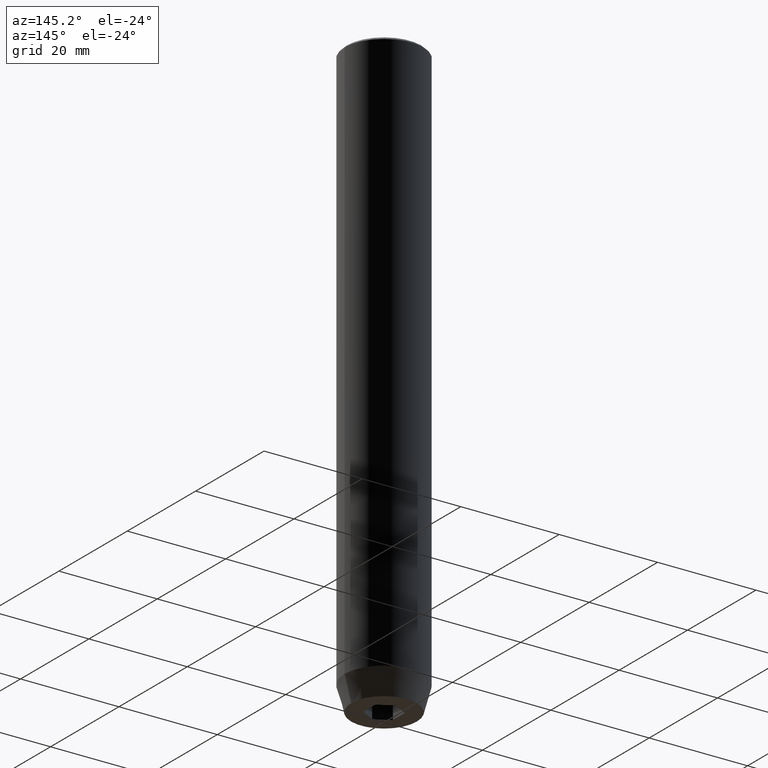
[diagram: clean part render]
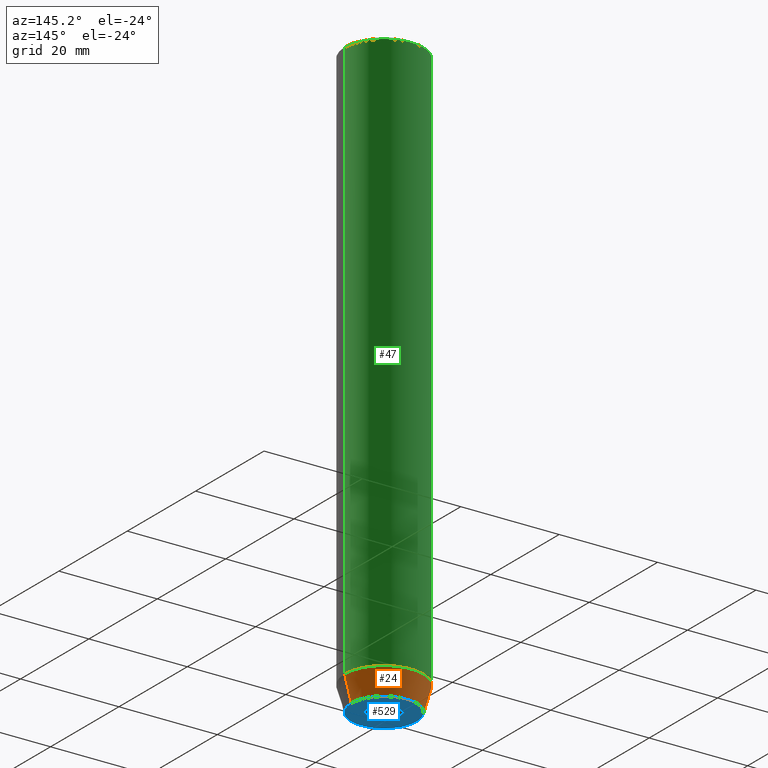
[diagram: same view with three faces highlighted in distinct colors, each labeled with its STEP entity id]
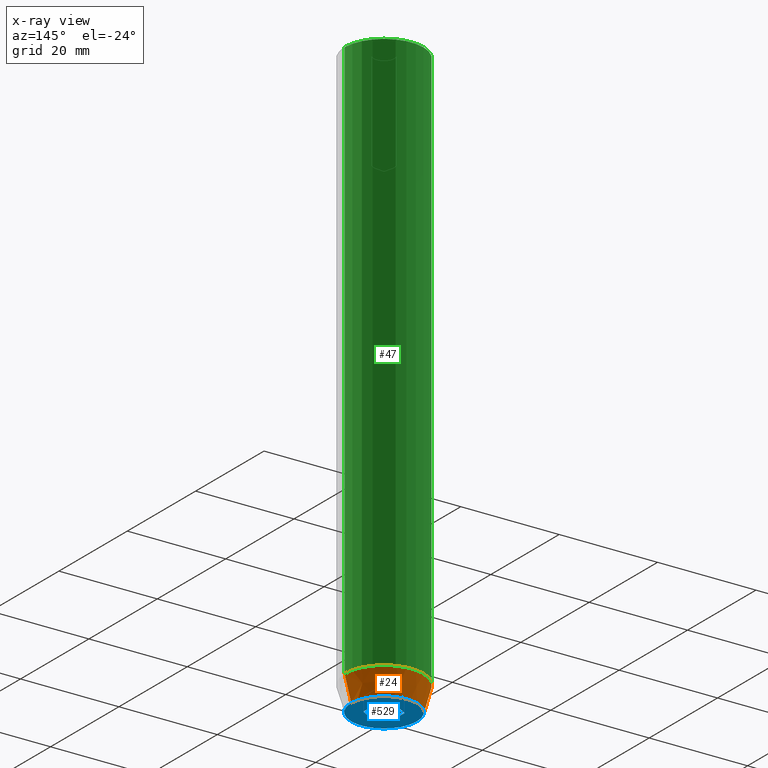
[diagram: x-ray of the same camera — body ghosted, the three highlighted faces saturated]
A machine part, auxiliary view with three faces highlighted in distinct colors.
The next image is the same camera in x-ray (body ghosted, the three faces saturated) — at least one of them is partly hidden behind the body in this view.
Their STEP definitions:

[orange] entity #24 — the highlighted conical surface has half-angle 15 deg.
#12 = ORIENTED_EDGE ( 'NONE', *, *, #315, .F. ) ;
#19 = CIRCLE ( 'NONE', #558, 6.660254037844381969 ) ;
#24 = ADVANCED_FACE ( 'NONE', ( #541 ), #515, .T. ) ;
#75 = CIRCLE ( 'NONE', #475, 8.000000000000000000 ) ;
#112 = VECTOR ( 'NONE', #451, 1000.000000000000000 ) ;
#132 = CARTESIAN_POINT ( 'NONE',  ( -8.000000000000000000, 9.797174393178825657E-16, -114.9999999999999858 ) ) ;
#133 = DIRECTION ( 'NONE',  ( -0.000000000000000000, -0.000000000000000000, 1.000000000000000000 ) ) ;
#135 = ORIENTED_EDGE ( 'NONE', *, *, #149, .F. ) ;
#140 = CARTESIAN_POINT ( 'NONE',  ( 0.000000000000000000, 0.000000000000000000, -114.9999999999999858 ) ) ;
#149 = EDGE_CURVE ( 'NONE', #501, #317, #75, .T. ) ;
#192 = DIRECTION ( 'NONE',  ( -0.000000000000000000, -0.000000000000000000, 1.000000000000000000 ) ) ;
#209 = ORIENTED_EDGE ( 'NONE', *, *, #415, .T. ) ;
#238 = CARTESIAN_POINT ( 'NONE',  ( 0.000000000000000000, 0.000000000000000000, -114.9999999999999858 ) ) ;
#251 = CARTESIAN_POINT ( 'NONE',  ( 6.660254037844381969, 0.000000000000000000, -120.0000000000000000 ) ) ;
#261 = CARTESIAN_POINT ( 'NONE',  ( 8.000000000000000000, 0.000000000000000000, -114.9999999999999858 ) ) ;
#299 = VECTOR ( 'NONE', #374, 1000.000000000000000 ) ;
#312 = DIRECTION ( 'NONE',  ( 1.000000000000000000, 0.000000000000000000, 0.000000000000000000 ) ) ;
#315 = EDGE_CURVE ( 'NONE', #531, #501, #543, .T. ) ;
#317 = VERTEX_POINT ( 'NONE', #132 ) ;
#322 = CARTESIAN_POINT ( 'NONE',  ( 0.000000000000000000, 0.000000000000000000, -120.0000000000000000 ) ) ;
#352 = ORIENTED_EDGE ( 'NONE', *, *, #437, .T. ) ;
#374 = DIRECTION ( 'NONE',  ( -0.2588190451025213501, 3.169619151431772337E-17, 0.9659258262890680902 ) ) ;
#377 = LINE ( 'NONE', #557, #299 ) ;
#382 = CARTESIAN_POINT ( 'NONE',  ( -6.660254037844381969, 8.976816591066591237E-16, -120.0000000000000000 ) ) ;
#394 = CARTESIAN_POINT ( 'NONE',  ( 8.000000000000000000, 0.000000000000000000, -114.9999999999999858 ) ) ;
#415 = EDGE_CURVE ( 'NONE', #580, #317, #377, .T. ) ;
#427 = DIRECTION ( 'NONE',  ( 1.000000000000000000, 0.000000000000000000, 0.000000000000000000 ) ) ;
#437 = EDGE_CURVE ( 'NONE', #531, #580, #19, .T. ) ;
#451 = DIRECTION ( 'NONE',  ( 0.2588190451025213501, 0.000000000000000000, 0.9659258262890680902 ) ) ;
#452 = EDGE_LOOP ( 'NONE', ( #352, #209, #135, #12 ) ) ;
#468 = DIRECTION ( 'NONE',  ( -0.000000000000000000, -0.000000000000000000, 1.000000000000000000 ) ) ;
#469 = AXIS2_PLACEMENT_3D ( 'NONE', #140, #133, #312 ) ;
#474 = DIRECTION ( 'NONE',  ( 1.000000000000000000, 0.000000000000000000, 0.000000000000000000 ) ) ;
#475 = AXIS2_PLACEMENT_3D ( 'NONE', #238, #192, #474 ) ;
#501 = VERTEX_POINT ( 'NONE', #394 ) ;
#515 = CONICAL_SURFACE ( 'NONE', #469, 8.000000000000000000, 0.2617993877991500740 ) ;
#531 = VERTEX_POINT ( 'NONE', #251 ) ;
#541 = FACE_OUTER_BOUND ( 'NONE', #452, .T. ) ;
#543 = LINE ( 'NONE', #261, #112 ) ;
#557 = CARTESIAN_POINT ( 'NONE',  ( -8.000000000000000000, 9.797174393178825657E-16, -114.9999999999999858 ) ) ;
#558 = AXIS2_PLACEMENT_3D ( 'NONE', #322, #468, #427 ) ;
#580 = VERTEX_POINT ( 'NONE', #382 ) ;

[blue] entity #529 — the highlighted planar face has unit normal (0, 0, -1).
#4 = VERTEX_POINT ( 'NONE', #41 ) ;
#5 = VECTOR ( 'NONE', #378, 1000.000000000000000 ) ;
#6 = CARTESIAN_POINT ( 'NONE',  ( -3.000000000000000444, -7.511572993685800087E-16, -120.0000000000000000 ) ) ;
#7 = DIRECTION ( 'NONE',  ( -0.000000000000000000, -0.000000000000000000, 1.000000000000000000 ) ) ;
#10 = PLANE ( 'NONE',  #396 ) ;
#14 = LINE ( 'NONE', #184, #5 ) ;
#19 = CIRCLE ( 'NONE', #558, 6.660254037844381969 ) ;
#21 = EDGE_CURVE ( 'NONE', #580, #531, #525, .T. ) ;
#32 = EDGE_CURVE ( 'NONE', #4, #460, #273, .T. ) ;
#41 = CARTESIAN_POINT ( 'NONE',  ( -3.000000000000000888, 1.732050807568876527, -120.0000000000000000 ) ) ;
#45 = CARTESIAN_POINT ( 'NONE',  ( -1.500000000000000666, -2.598076211353316456, -120.0000000000000000 ) ) ;
#60 = CARTESIAN_POINT ( 'NONE',  ( -2.168404344971008868E-16, -3.464101615137754830, -120.0000000000000000 ) ) ;
#64 = EDGE_CURVE ( 'NONE', #313, #397, #365, .T. ) ;
#73 = DIRECTION ( 'NONE',  ( -1.000000000000000000, 0.000000000000000000, -0.000000000000000000 ) ) ;
#85 = ORIENTED_EDGE ( 'NONE', *, *, #225, .F. ) ;
#89 = CARTESIAN_POINT ( 'NONE',  ( 3.000000000000000000, -1.732050807568876527, -120.0000000000000000 ) ) ;
#91 = ORIENTED_EDGE ( 'NONE', *, *, #188, .F. ) ;
#92 = EDGE_CURVE ( 'NONE', #460, #131, #466, .T. ) ;
#107 = CARTESIAN_POINT ( 'NONE',  ( 3.000000000000000000, 1.732050807568876527, -120.0000000000000000 ) ) ;
#117 = CARTESIAN_POINT ( 'NONE',  ( 0.000000000000000000, 6.660254037844381969, -120.0000000000000000 ) ) ;
#131 = VERTEX_POINT ( 'NONE', #107 ) ;
#139 = DIRECTION ( 'NONE',  ( -0.8660254037844385966, 0.5000000000000001110, 0.000000000000000000 ) ) ;
#176 = VERTEX_POINT ( 'NONE', #418 ) ;
#179 = ORIENTED_EDGE ( 'NONE', *, *, #32, .F. ) ;
#184 = CARTESIAN_POINT ( 'NONE',  ( 3.000000000000000000, 0.000000000000000000, -120.0000000000000000 ) ) ;
#188 = EDGE_CURVE ( 'NONE', #131, #313, #14, .T. ) ;
#196 = ORIENTED_EDGE ( 'NONE', *, *, #328, .F. ) ;
#205 = VECTOR ( 'NONE', #406, 999.9999999999998863 ) ;
#207 = ORIENTED_EDGE ( 'NONE', *, *, #21, .F. ) ;
#225 = EDGE_CURVE ( 'NONE', #176, #4, #373, .T. ) ;
#240 = DIRECTION ( 'NONE',  ( -0.8660254037844385966, -0.5000000000000001110, 0.000000000000000000 ) ) ;
#241 = VECTOR ( 'NONE', #139, 1000.000000000000000 ) ;
#251 = CARTESIAN_POINT ( 'NONE',  ( 6.660254037844381969, 0.000000000000000000, -120.0000000000000000 ) ) ;
#252 = VECTOR ( 'NONE', #422, 1000.000000000000000 ) ;
#263 = VECTOR ( 'NONE', #240, 1000.000000000000000 ) ;
#273 = LINE ( 'NONE', #495, #205 ) ;
#298 = EDGE_LOOP ( 'NONE', ( #179, #85, #196, #416, #91, #572 ) ) ;
#311 = LINE ( 'NONE', #45, #241 ) ;
#313 = VERTEX_POINT ( 'NONE', #89 ) ;
#318 = FACE_OUTER_BOUND ( 'NONE', #348, .T. ) ;
#322 = CARTESIAN_POINT ( 'NONE',  ( 0.000000000000000000, 0.000000000000000000, -120.0000000000000000 ) ) ;
#328 = EDGE_CURVE ( 'NONE', #397, #176, #311, .T. ) ;
#330 = CARTESIAN_POINT ( 'NONE',  ( 1.500000000000000222, 2.598076211353315568, -120.0000000000000000 ) ) ;
#341 = CARTESIAN_POINT ( 'NONE',  ( -2.168404344971008868E-16, 3.464101615137754830, -120.0000000000000000 ) ) ;
#348 = EDGE_LOOP ( 'NONE', ( #419, #207 ) ) ;
#359 = DIRECTION ( 'NONE',  ( 1.000000000000000000, 0.000000000000000000, 0.000000000000000000 ) ) ;
#365 = LINE ( 'NONE', #548, #263 ) ;
#373 = LINE ( 'NONE', #6, #393 ) ;
#378 = DIRECTION ( 'NONE',  ( 0.000000000000000000, -1.000000000000000000, 0.000000000000000000 ) ) ;
#382 = CARTESIAN_POINT ( 'NONE',  ( -6.660254037844381969, 8.976816591066591237E-16, -120.0000000000000000 ) ) ;
#393 = VECTOR ( 'NONE', #401, 1000.000000000000000 ) ;
#396 = AXIS2_PLACEMENT_3D ( 'NONE', #117, #506, #73 ) ;
#397 = VERTEX_POINT ( 'NONE', #60 ) ;
#401 = DIRECTION ( 'NONE',  ( -2.503857664561932376E-16, 1.000000000000000000, 0.000000000000000000 ) ) ;
#406 = DIRECTION ( 'NONE',  ( 0.8660254037844387076, 0.4999999999999999445, 0.000000000000000000 ) ) ;
#416 = ORIENTED_EDGE ( 'NONE', *, *, #64, .F. ) ;
#418 = CARTESIAN_POINT ( 'NONE',  ( -3.000000000000000000, -1.732050807568877859, -120.0000000000000000 ) ) ;
#419 = ORIENTED_EDGE ( 'NONE', *, *, #437, .F. ) ;
#421 = AXIS2_PLACEMENT_3D ( 'NONE', #499, #7, #359 ) ;
#422 = DIRECTION ( 'NONE',  ( 0.8660254037844385966, -0.5000000000000001110, 0.000000000000000000 ) ) ;
#427 = DIRECTION ( 'NONE',  ( 1.000000000000000000, 0.000000000000000000, 0.000000000000000000 ) ) ;
#437 = EDGE_CURVE ( 'NONE', #531, #580, #19, .T. ) ;
#460 = VERTEX_POINT ( 'NONE', #341 ) ;
#466 = LINE ( 'NONE', #330, #252 ) ;
#468 = DIRECTION ( 'NONE',  ( -0.000000000000000000, -0.000000000000000000, 1.000000000000000000 ) ) ;
#495 = CARTESIAN_POINT ( 'NONE',  ( -1.499999999999999556, 2.598076211353316012, -120.0000000000000000 ) ) ;
#499 = CARTESIAN_POINT ( 'NONE',  ( 0.000000000000000000, 0.000000000000000000, -120.0000000000000000 ) ) ;
#506 = DIRECTION ( 'NONE',  ( 0.000000000000000000, 0.000000000000000000, -1.000000000000000000 ) ) ;
#524 = FACE_BOUND ( 'NONE', #298, .T. ) ;
#525 = CIRCLE ( 'NONE', #421, 6.660254037844381969 ) ;
#529 = ADVANCED_FACE ( 'NONE', ( #524, #318 ), #10, .T. ) ;
#531 = VERTEX_POINT ( 'NONE', #251 ) ;
#548 = CARTESIAN_POINT ( 'NONE',  ( 1.500000000000000222, -2.598076211353315568, -120.0000000000000000 ) ) ;
#558 = AXIS2_PLACEMENT_3D ( 'NONE', #322, #468, #427 ) ;
#572 = ORIENTED_EDGE ( 'NONE', *, *, #92, .F. ) ;
#580 = VERTEX_POINT ( 'NONE', #382 ) ;

[green] entity #47 — the highlighted cylindrical surface (partial cylindrical patch) has radius 8 mm, axis along (-0, -0, 1).
#15 = VERTEX_POINT ( 'NONE', #97 ) ;
#22 = LINE ( 'NONE', #279, #550 ) ;
#30 = VECTOR ( 'NONE', #487, 1000.000000000000000 ) ;
#47 = ADVANCED_FACE ( 'NONE', ( #586 ), #169, .T. ) ;
#75 = CIRCLE ( 'NONE', #475, 8.000000000000000000 ) ;
#97 = CARTESIAN_POINT ( 'NONE',  ( -8.000000000000000000, 9.797174393178825657E-16, -0.5000000000000213163 ) ) ;
#111 = DIRECTION ( 'NONE',  ( 0.000000000000000000, 0.000000000000000000, -1.000000000000000000 ) ) ;
#128 = ORIENTED_EDGE ( 'NONE', *, *, #523, .T. ) ;
#132 = CARTESIAN_POINT ( 'NONE',  ( -8.000000000000000000, 9.797174393178825657E-16, -114.9999999999999858 ) ) ;
#149 = EDGE_CURVE ( 'NONE', #501, #317, #75, .T. ) ;
#158 = DIRECTION ( 'NONE',  ( 1.000000000000000000, 0.000000000000000000, 0.000000000000000000 ) ) ;
#169 = CYLINDRICAL_SURFACE ( 'NONE', #172, 8.000000000000000000 ) ;
#172 = AXIS2_PLACEMENT_3D ( 'NONE', #362, #226, #407 ) ;
#192 = DIRECTION ( 'NONE',  ( -0.000000000000000000, -0.000000000000000000, 1.000000000000000000 ) ) ;
#193 = CARTESIAN_POINT ( 'NONE',  ( 0.000000000000000000, 0.000000000000000000, -0.5000000000000213163 ) ) ;
#200 = LINE ( 'NONE', #436, #30 ) ;
#226 = DIRECTION ( 'NONE',  ( -0.000000000000000000, -0.000000000000000000, 1.000000000000000000 ) ) ;
#233 = ORIENTED_EDGE ( 'NONE', *, *, #446, .F. ) ;
#238 = CARTESIAN_POINT ( 'NONE',  ( 0.000000000000000000, 0.000000000000000000, -114.9999999999999858 ) ) ;
#279 = CARTESIAN_POINT ( 'NONE',  ( 8.000000000000000000, 0.000000000000000000, 0.000000000000000000 ) ) ;
#290 = AXIS2_PLACEMENT_3D ( 'NONE', #193, #111, #158 ) ;
#305 = EDGE_LOOP ( 'NONE', ( #350, #449, #128, #233 ) ) ;
#317 = VERTEX_POINT ( 'NONE', #132 ) ;
#339 = VERTEX_POINT ( 'NONE', #559 ) ;
#350 = ORIENTED_EDGE ( 'NONE', *, *, #149, .T. ) ;
#362 = CARTESIAN_POINT ( 'NONE',  ( 0.000000000000000000, 0.000000000000000000, 0.000000000000000000 ) ) ;
#394 = CARTESIAN_POINT ( 'NONE',  ( 8.000000000000000000, 0.000000000000000000, -114.9999999999999858 ) ) ;
#407 = DIRECTION ( 'NONE',  ( 1.000000000000000000, 0.000000000000000000, 0.000000000000000000 ) ) ;
#434 = CIRCLE ( 'NONE', #290, 8.000000000000000000 ) ;
#436 = CARTESIAN_POINT ( 'NONE',  ( -8.000000000000000000, 9.797174393178825657E-16, 0.000000000000000000 ) ) ;
#446 = EDGE_CURVE ( 'NONE', #501, #339, #22, .T. ) ;
#449 = ORIENTED_EDGE ( 'NONE', *, *, #467, .T. ) ;
#467 = EDGE_CURVE ( 'NONE', #317, #15, #200, .T. ) ;
#474 = DIRECTION ( 'NONE',  ( 1.000000000000000000, 0.000000000000000000, 0.000000000000000000 ) ) ;
#475 = AXIS2_PLACEMENT_3D ( 'NONE', #238, #192, #474 ) ;
#487 = DIRECTION ( 'NONE',  ( -0.000000000000000000, -0.000000000000000000, 1.000000000000000000 ) ) ;
#501 = VERTEX_POINT ( 'NONE', #394 ) ;
#523 = EDGE_CURVE ( 'NONE', #15, #339, #434, .T. ) ;
#550 = VECTOR ( 'NONE', #562, 1000.000000000000000 ) ;
#559 = CARTESIAN_POINT ( 'NONE',  ( 8.000000000000000000, 0.000000000000000000, -0.5000000000000213163 ) ) ;
#562 = DIRECTION ( 'NONE',  ( -0.000000000000000000, -0.000000000000000000, 1.000000000000000000 ) ) ;
#586 = FACE_OUTER_BOUND ( 'NONE', #305, .T. ) ;